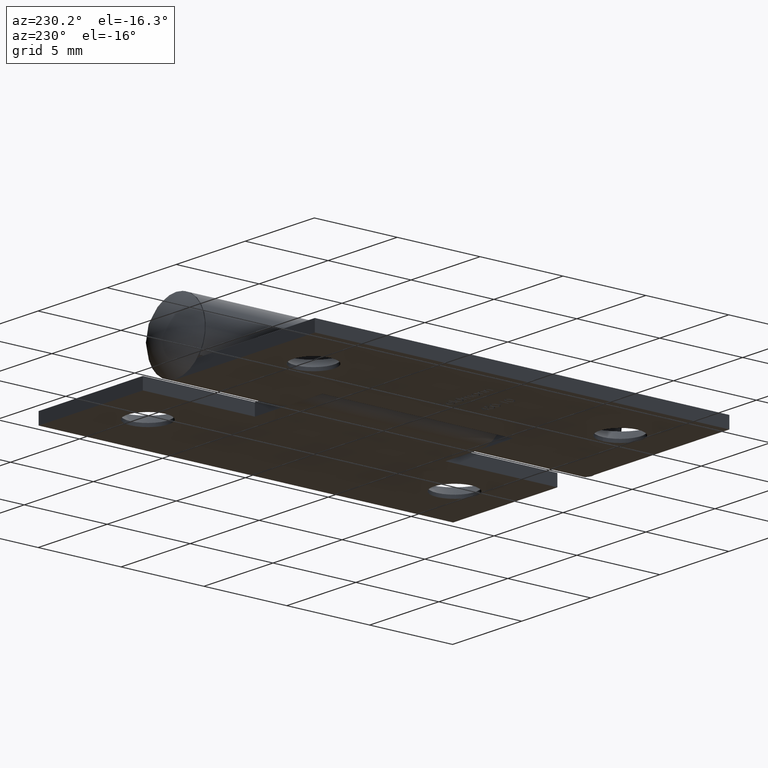
[diagram: clean part render]
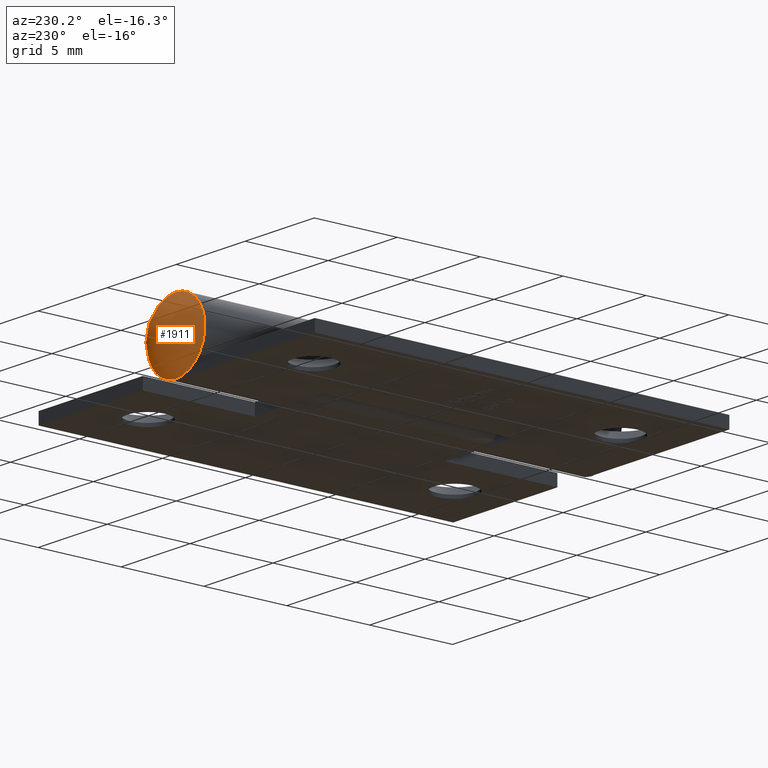
[diagram: same view with one face highlighted and labeled with its STEP entity id]
A machine part, auxiliary view. The second image highlights one B-rep face of the part: STEP entity #1911.
In plain terms, the highlighted spherical surface has radius 2.705 mm.
Its self-contained STEP definition (entity closure, byte-faithful):
#1911 = ADVANCED_FACE ( 'NONE', ( #7790 ), #4398, .T. ) ;
#2183 = CARTESIAN_POINT ( 'NONE',  ( 0.000000000000000000, 12.55000000000000071, 0.000000000000000000 ) ) ;
#2863 = AXIS2_PLACEMENT_3D ( 'NONE', #4147, #6783, #3333 ) ;
#3110 = CIRCLE ( 'NONE', #5774, 2.100000000000000089 ) ;
#3333 = DIRECTION ( 'NONE',  ( 1.000000000000000000, 0.000000000000000000, 0.000000000000000000 ) ) ;
#4147 = CARTESIAN_POINT ( 'NONE',  ( 0.000000000000000000, 10.84500000000000064, 0.000000000000000000 ) ) ;
#4398 = SPHERICAL_SURFACE ( 'NONE', #2863, 2.705000000000000071 ) ;
#5421 = VERTEX_POINT ( 'NONE', #8616 ) ;
#5740 = EDGE_LOOP ( 'NONE', ( #6411 ) ) ;
#5774 = AXIS2_PLACEMENT_3D ( 'NONE', #2183, #10779, #5894 ) ;
#5894 = DIRECTION ( 'NONE',  ( 0.000000000000000000, 0.000000000000000000, -1.000000000000000000 ) ) ;
#6411 = ORIENTED_EDGE ( 'NONE', *, *, #11128, .F. ) ;
#6783 = DIRECTION ( 'NONE',  ( 0.000000000000000000, 0.000000000000000000, 1.000000000000000000 ) ) ;
#7790 = FACE_OUTER_BOUND ( 'NONE', #5740, .T. ) ;
#8616 = CARTESIAN_POINT ( 'NONE',  ( 0.000000000000000000, 12.55000000000000071, -2.100000000000000089 ) ) ;
#10779 = DIRECTION ( 'NONE',  ( -0.000000000000000000, -1.000000000000000000, -0.000000000000000000 ) ) ;
#11128 = EDGE_CURVE ( 'NONE', #5421, #5421, #3110, .T. ) ;